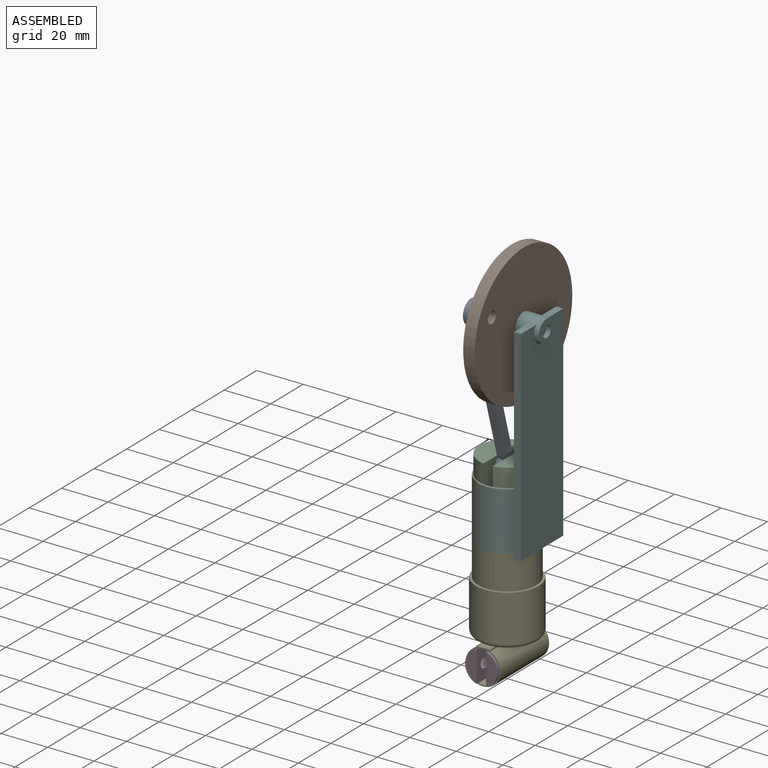
[diagram: assembled view]
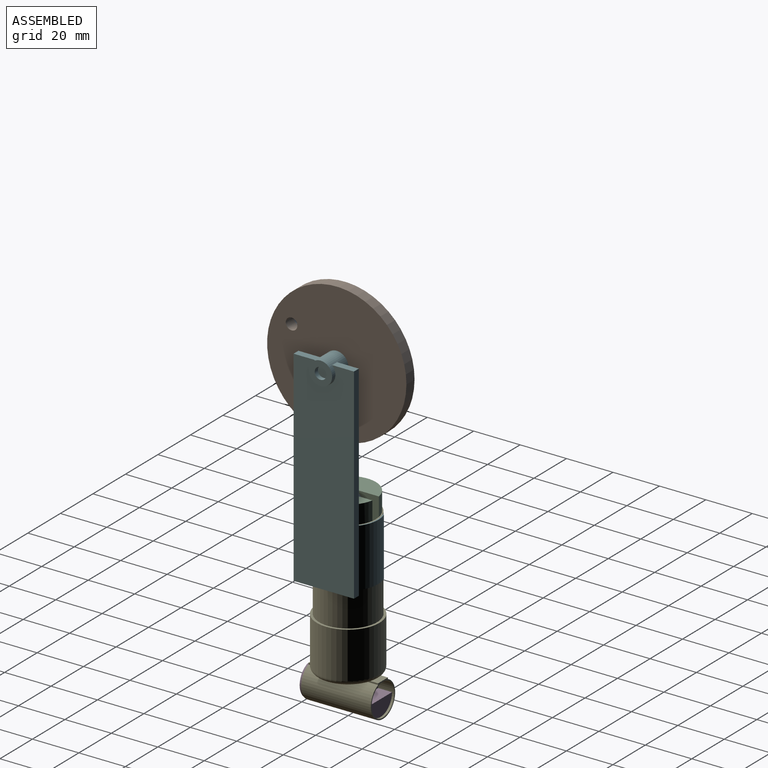
[diagram: assembled view, second angle]
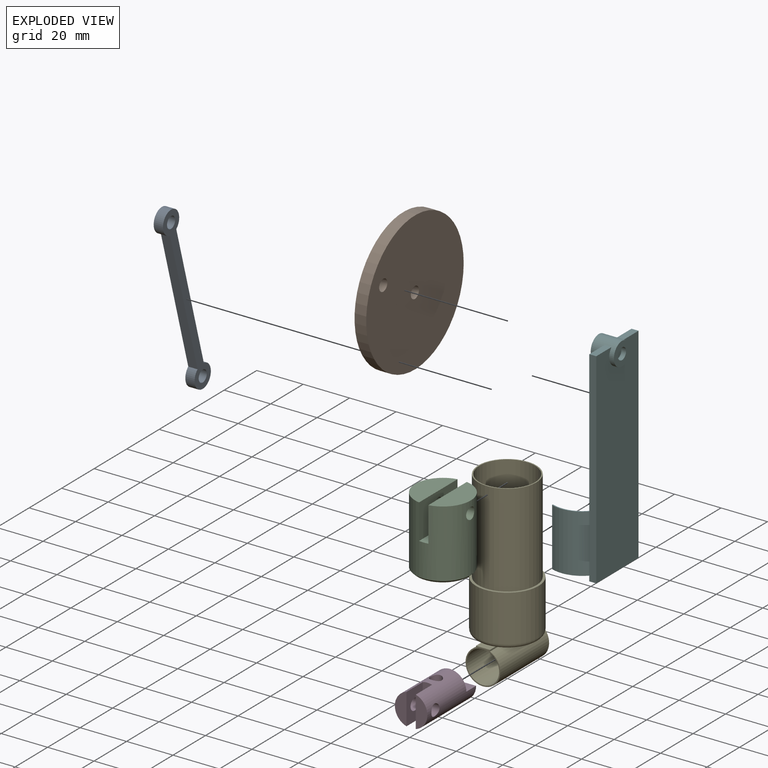
[diagram: exploded view]
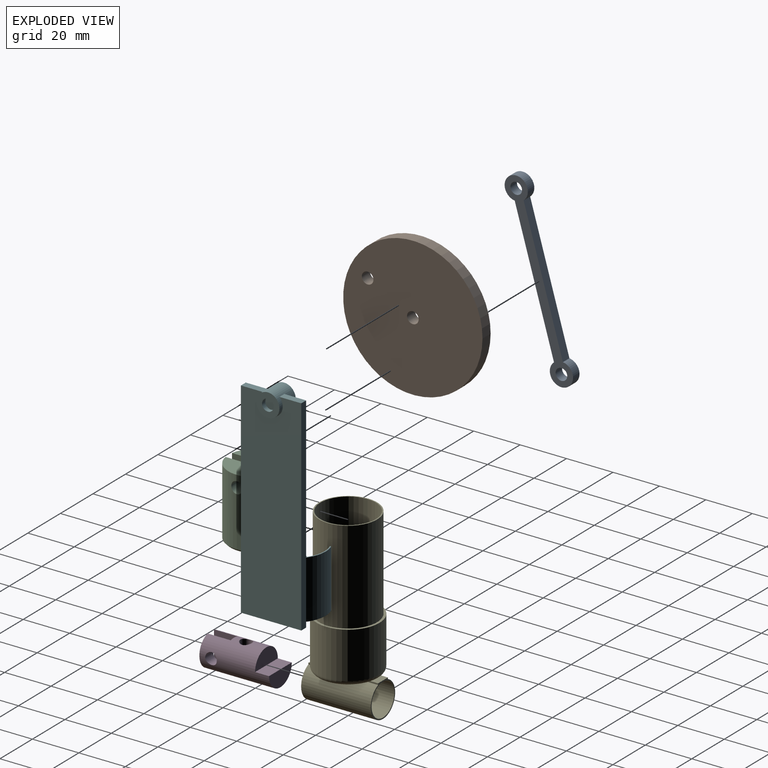
[diagram: exploded view, second angle]
ASSEMBLY  parts=6 mates=6
PART A: 8 faces, bbox 80x10x4 mm
  f0: cylinder r=5mm len=10mm, axis (0,0,-1), area 109.2mm2, adj f1,f3,f6,f7
  f1: plane 60.84x4mm, normal (0,-1,0), area 243.3mm2, adj f0,f2,f6,f7
  f2: cylinder r=5mm len=10mm, axis (0,0,-1), area 109.2mm2, adj f1,f3,f6,f7
  f3: plane 60.84x4mm, normal (0,1,0), area 243.3mm2, adj f0,f2,f6,f7
  f4: cylinder r=2.5mm len=5mm, axis (0,0,-1), area 62.8mm2, adj f6,f7
  f5: cylinder r=2.5mm len=5mm, axis (0,0,-1), area 62.8mm2, adj f6,f7
  f6: plane 80x10mm, normal (0,0,1), area 358.9mm2, adj f0,f1,f2,f3,f4,f5
  f7: plane 80x10mm, normal (0,0,-1), area 358.9mm2, adj f0,f1,f2,f3,f4,f5
PART B: 5 faces, bbox 60x60x5 mm
  f0: cylinder r=2.5mm len=5mm, axis (0,0,-1), area 78.5mm2, adj f3,f4
  f1: cylinder r=2.5mm len=5mm, axis (0,0,-1), area 78.5mm2, adj f3,f4
  f2: cylinder r=30mm len=60mm, axis (0,0,-1), area 942.5mm2, adj f3,f4
  f3: plane 60x60mm, normal (0,0,1), area 2788.2mm2, adj f0,f1,f2
  f4: plane 60x60mm, normal (0,0,-1), area 2788.2mm2, adj f0,f1,f2
PART C: 10 faces, bbox 24x24x30 mm
  f0: plane 23.66x10mm, normal (0,0,1), area 178.4mm2, adj f1,f4
  f1: cylinder r=12mm len=29mm, axis (0,0,-1), area 2026.4mm2, adj f0,f2,f4,f5,f6,f7,f8,f9
  f2: plane 23.66x10mm, normal (0,0,1), area 178.4mm2, adj f1,f5
  f3: plane 22x22mm, normal (0,0,-1), area 380.1mm2, adj f9
  f4: plane 23.66x15mm, normal (-1,0,0), area 335.3mm2, adj f0,f1,f6,f8
  f5: plane 23.66x15mm, normal (1,0,0), area 335.3mm2, adj f1,f2,f6,f7
  f6: plane 24x4mm, normal (0,0,1), area 95.6mm2, adj f1,f4,f5
  f7: cylinder r=2.5mm len=10mm, axis (1,0,0), area 155mm2, adj f1,f5
  f8: cylinder r=2.5mm len=10mm, axis (1,0,0), area 155mm2, adj f1,f4
  f9: cone r=12mm half-angle=45deg, axis (0,0,1), area 102.2mm2, adj f1,f3
PART D: 12 faces, bbox 14x14x30 mm
  f0: plane 14x7mm, normal (0,0,-1), area 77mm2, adj f2,f11
  f1: plane 13.42x5mm, normal (0,0,1), area 49.4mm2, adj f2,f4
  f2: cylinder r=7mm len=30mm, axis (0,0,-1), area 1026.6mm2, adj f0,f1,f3,f4,f5,f6,f7,f8
  f3: plane 13.42x5mm, normal (0,0,1), area 49.4mm2, adj f2,f5
  f4: plane 13.42x10mm, normal (-1,0,0), area 114.5mm2, adj f1,f2,f6,f8
  f5: plane 13.42x10mm, normal (1,0,0), area 114.5mm2, adj f2,f3,f6,f7
  f6: plane 14x4mm, normal (0,0,1), area 55.2mm2, adj f2,f4,f5
  f7: cylinder r=2.5mm len=5mm, axis (1,0,0), area 74.9mm2, adj f2,f5
  f8: cylinder r=2.5mm len=5mm, axis (1,0,0), area 74.9mm2, adj f2,f4
  f9: cylinder r=2.5mm len=14mm, axis (0,-1,0), area 212.7mm2, adj f2
  f10: plane 14x7mm, normal (0,0,-1), area 77mm2, adj f2,f11
  f11: plane 14x6mm, normal (0,1,0), area 84mm2, adj f0,f2,f10
PART E: 19 faces, bbox 29.2x30x77 mm
  f0: plane 22.2x8.49mm, normal (0,0,-1), area 139.3mm2, adj f9,f11
  f1: cylinder r=12mm len=60mm, axis (0,0,-1), area 4523.9mm2, adj f3,f6
  f2: cylinder r=12.5mm len=40mm, axis (0,0,-1), area 3141.6mm2, adj f3,f5
  f3: plane 25x25mm, normal (0,0,1), area 38.5mm2, adj f1,f2
  f4: cylinder r=13.5mm len=27mm, axis (0,0,-1), area 1696.5mm2, adj f5,f9
  f5: plane 27x27mm, normal (0,0,1), area 81.7mm2, adj f2,f4
  f6: plane 24x24mm, normal (0,0,1), area 432.8mm2, adj f1,f7
  f7: cylinder r=2.5mm len=5mm, axis (0,0,1), area 42.9mm2, adj f6,f15
  f8: plane 22.2x8.49mm, normal (0,0,-1), area 139.3mm2, adj f9,f13
  f9: torus R=11.5mm, axis (0,0,1), area 252.1mm2, adj f0,f4,f8,f10,f14
  f10: plane 6.02x3.9mm, normal (0,0,1), area 21.9mm2, adj f9,f11,f13,f16
  f11: plane 30x0.63mm, normal (-1,0,0), area 18.9mm2, adj f0,f10,f12,f14,f16,f17
  f12: cylinder r=7.5mm len=30mm, axis (0,1,0), area 1207.9mm2, adj f11,f13,f16,f17,f18
  f13: plane 30x0.63mm, normal (1,0,0), area 18.9mm2, adj f8,f10,f12,f14,f16,f17
  f14: plane 6.02x3.9mm, normal (0,0,1), area 21.9mm2, adj f9,f11,f13,f17
  f15: cylinder r=7mm len=30mm, axis (0,1,0), area 1279.6mm2, adj f7,f16,f17,f18
  f16: plane 15x15mm, normal (0,-1,0), area 24mm2, adj f10,f11,f12,f13,f15
  f17: plane 15x15mm, normal (0,1,0), area 24mm2, adj f11,f12,f13,f14,f15
  f18: cylinder r=2.5mm len=5mm, axis (0,0,1), area 8.1mm2, adj f12,f15
PART F: 22 faces, bbox 26x90x21.6 mm
  f0: plane 9.37x3mm, normal (0,1,0), area 28.1mm2, adj f12,f13,f14,f16
  f1: cylinder r=12.5mm len=25mm, axis (0,1,0), area 520.2mm2, adj f3,f7,f8,f14
  f2: cylinder r=13mm len=25mm, axis (0,1,0), area 500mm2, adj f3,f7,f8,f14
  f3: plane 16.61x9.5mm, normal (0,1,0), area 10.2mm2, adj f1,f2,f7,f14
  f4: cylinder r=12.5mm len=25mm, axis (0,1,0), area 520.2mm2, adj f5,f8,f9,f14
  f5: plane 25x0.54mm, normal (0,0,1), area 13.4mm2, adj f4,f6,f8,f9
  f6: cylinder r=13mm len=25mm, axis (0,1,0), area 500mm2, adj f5,f8,f9,f14
  f7: plane 25x0.54mm, normal (0,0,1), area 13.4mm2, adj f1,f2,f3,f8
  f8: plane 26x19.61mm, normal (0,-1,0), area 98.4mm2, adj f1,f2,f4,f5,f6,f7,f10,f12
  f9: plane 16.61x9.5mm, normal (0,1,0), area 10.2mm2, adj f4,f5,f6,f14
  f10: plane 88.44x3mm, normal (1,0,0), area 265.3mm2, adj f8,f11,f13,f14
  f11: plane 9.37x3mm, normal (0,1,0), area 28.1mm2, adj f10,f13,f14,f16
  f12: plane 88.44x3mm, normal (-1,0,0), area 265.3mm2, adj f0,f8,f13,f14
  f13: plane 88.44x26mm, normal (0,0,-1), area 2228.7mm2, adj f0,f8,f10,f11,f12,f16
  f14: plane 88.44x26mm, normal (0,0,1), area 2153.7mm2, adj f0,f1,f2,f3,f4,f6,f8,f9
  f15: cylinder r=2.5mm len=5mm, axis (0,0,1), area 31.4mm2, adj f18,f21
  f16: cylinder r=5mm len=10mm, axis (0,0,1), area 244.3mm2, adj f0,f11,f13,f14,f18,f19
  f17: cylinder r=2.5mm len=5mm, axis (0,0,1), area 78.5mm2, adj f19,f20
  f18: plane 10x10mm, normal (0,0,-1), area 58.9mm2, adj f15,f16
  f19: plane 10x10mm, normal (0,0,1), area 58.9mm2, adj f16,f17
  f20: plane 5x5mm, normal (0,0,1), area 19.6mm2, adj f17
  f21: plane 5x5mm, normal (0,0,-1), area 19.6mm2, adj f15
PLACE A rot(axis=(0.14,-0.98,-0.14),91.1deg) t=(2,-19.47,132.24)mm
PLACE B rot(axis=(-0.23,0.94,-0.23),93.3deg) t=(2,0,122)mm
PLACE C t=(0,0,40)mm
PLACE D rot(axis=(1,0,0),90deg) t=(0,14.01,-7.5)mm
PLACE E t=(0,0,2)mm
PLACE F rot(axis=(0.58,-0.58,-0.58),120deg) t=(0,0,62)mm
MATE revolute A.f4 <-> C.f7  axis (-1,0,0) through (-2,0,65)mm
MATE slider D.f2 <-> E.f15  axis (0,1,0) through (0,14.01,-7.5)mm
MATE revolute B.f2 <-> F.f15  axis (1,0,0) through (7,0,122)mm
MATE revolute A.f5 <-> B.f0  axis (1,0,0) through (2,-19.47,132.24)mm
MATE slider C.f1 <-> E.f1  axis (0,0,-1) through (0,0,40)mm
MATE fastened F.f1 <-> E.f1  axis (0,0,1) through (0,0,62)mm
